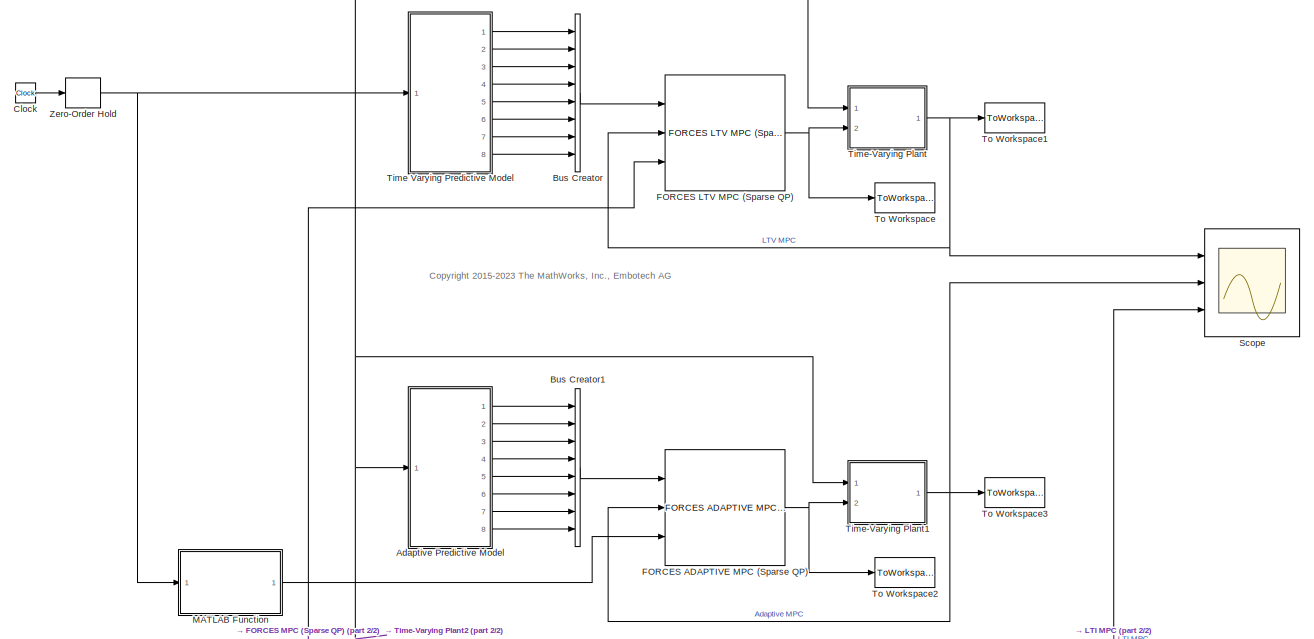
[diagram: root canvas - part 1/2, full width, middle band]
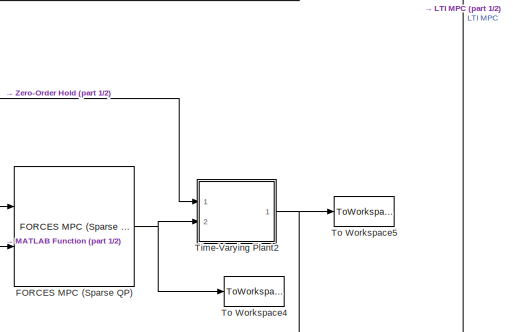
[diagram: root canvas - part 2/2, bottom right region]
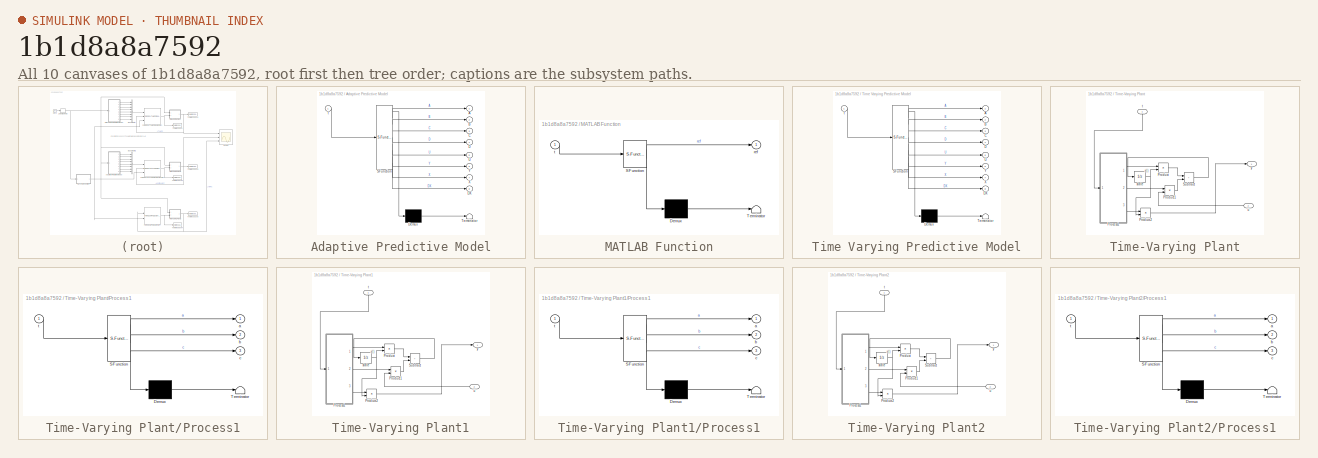
[diagram: thumbnail index - all 10 canvases of the model, root first then tree order]
MODEL slx_1b1d8a8a7592
KIND model
CONFIG AbsTol = auto
CONFIG EnableMultiTasking = on
CONFIG FixedStep = Ts
CONFIG MaxStep = auto
CONFIG MinStep = auto
CONFIG RelTol = 1e-3
CONFIG SampleTimeConstraint = Unconstrained
CONFIG Solver = FixedStepDiscrete
CONFIG SolverName = FixedStepDiscrete
CONFIG StartTime = 0.0
CONFIG StopTime = Tstop
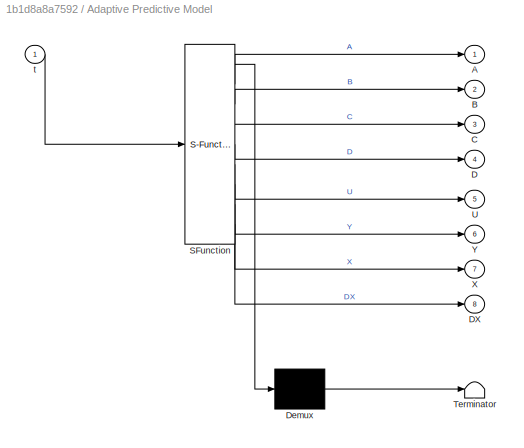
BLOCK [SubSystem] Adaptive Predictive Model
  ErrorFcn = Stateflow.Translate.translate
  PermitHierarchicalResolution = ExplicitOnly
  Ports = [1, 8]
  RequestExecContextInheritance = off
  SFBlockType = MATLAB Function
  TreatAsAtomicUnit = on
BLOCK [Demux] Adaptive Predictive Model/ Demux 
  Outputs = 1
  Ports = [1, 1]
BLOCK [S-Function] Adaptive Predictive Model/ SFunction 
  EnableBusSupport = on
  FunctionName = sf_sfun
  Parameters = Ts
  PortCounts = [1 9]
  Ports = [1, 9]
  SFcnIsStateOwnerBlock = off
  SFunctionDeploymentMode = off
  Tag = Stateflow S-Function mpc_forces 3
BLOCK [Terminator] Adaptive Predictive Model/ Terminator 
BLOCK [Outport] Adaptive Predictive Model/A
BLOCK [Outport] Adaptive Predictive Model/B
  Port = 2
BLOCK [Outport] Adaptive Predictive Model/C
  Port = 3
BLOCK [Outport] Adaptive Predictive Model/D
  Port = 4
BLOCK [Outport] Adaptive Predictive Model/DX
  Port = 8
BLOCK [Outport] Adaptive Predictive Model/U
  Port = 5
BLOCK [Outport] Adaptive Predictive Model/X
  Port = 7
BLOCK [Outport] Adaptive Predictive Model/Y
  Port = 6
BLOCK [Inport] Adaptive Predictive Model/t
BLOCK [BusCreator] Bus Creator
  DisplayOption = bar
  InheritFromInputs = on
  Inputs = 8
  Ports = [8, 1]
BLOCK [BusCreator] Bus Creator1
  DisplayOption = bar
  InheritFromInputs = on
  Inputs = 8
  Ports = [8, 1]
BLOCK [Clock] Clock
BLOCK [Reference] FORCES ADAPTIVE MPC (Sparse QP)  REF=forceslib/FORCES ADAPTIVE MPC (Sparse QP)  (lib defined in slx_01065b56049c, slx_1ff7529277ff, +15 more)
  Ports = [3, 1]
  SourceBlock = forceslib/FORCES ADAPTIVE MPC (Sparse QP)
  SourceProductName = FORCESPRO MPC Blocks
  SourceType = ForcesAdaptiveMPC_SparseQP
BLOCK [Reference] FORCES LTV MPC (Sparse QP)  REF=forceslib/FORCES LTV MPC (Sparse QP)  (lib defined in slx_01065b56049c, slx_1ff7529277ff, +15 more)
  Ports = [3, 1]
  SourceBlock = forceslib/FORCES LTV MPC (Sparse QP)
  SourceProductName = FORCESPRO MPC Blocks
  SourceType = ForcesLTVMPC_SparseQP
BLOCK [Reference] FORCES MPC (Sparse QP)  REF=forceslib/FORCES MPC (Sparse QP)  (lib defined in slx_01065b56049c, slx_1ff7529277ff, +15 more)
  Ports = [2, 1]
  SourceBlock = forceslib/FORCES MPC (Sparse QP)
  SourceProductName = FORCESPRO MPC Blocks
  SourceType = ForcesMPC_SparseQP
BLOCK [SubSystem] MATLAB Function
  ErrorFcn = Stateflow.Translate.translate
  PermitHierarchicalResolution = ExplicitOnly
  Ports = [1, 1]
  RequestExecContextInheritance = off
  SFBlockType = MATLAB Function
  TreatAsAtomicUnit = on
BLOCK [Demux] MATLAB Function/ Demux 
  Outputs = 1
  Ports = [1, 1]
BLOCK [S-Function] MATLAB Function/ SFunction 
  EnableBusSupport = on
  FunctionName = sf_sfun
  Parameters = Ts,Tstop
  PortCounts = [1 2]
  Ports = [1, 2]
  SFcnIsStateOwnerBlock = off
  SFunctionDeploymentMode = off
  Tag = Stateflow S-Function mpc_forces 5
BLOCK [Terminator] MATLAB Function/ Terminator 
BLOCK [Outport] MATLAB Function/ref
BLOCK [Inport] MATLAB Function/t
BLOCK [Scope] Scope
  Floating = off
  NumInputPorts = 3
  Ports = [3]
  ScopeSpecificationString = Simulink.scopes.TimeScopeBlockCfg('CurrentConfiguration', extmgr.ConfigurationSet(extmgr.Configuration('Core','General UI',true),extmgr.Configuration('Core','Source UI',true),extmgr.Configuration('Sources','WiredSimulink',true),extmgr.Configuration('Visuals','Time Domain',true,'SerializedDisplays',{struct('MinYLimReal','-0.16758','MaxYLimReal','1.50821','YLabelReal','','MinYLimMag','0.00000','MaxY...<+1603ch>
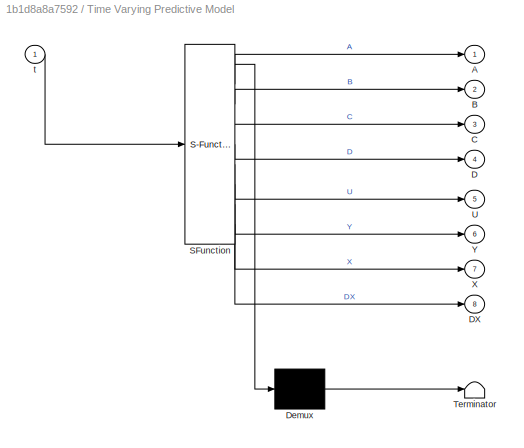
BLOCK [SubSystem] Time Varying Predictive Model
  ErrorFcn = Stateflow.Translate.translate
  PermitHierarchicalResolution = ExplicitOnly
  Ports = [1, 8]
  RequestExecContextInheritance = off
  SFBlockType = MATLAB Function
  TreatAsAtomicUnit = on
BLOCK [Demux] Time Varying Predictive Model/ Demux 
  Outputs = 1
  Ports = [1, 1]
BLOCK [S-Function] Time Varying Predictive Model/ SFunction 
  EnableBusSupport = on
  FunctionName = sf_sfun
  Parameters = Ts,p
  PortCounts = [1 9]
  Ports = [1, 9]
  SFcnIsStateOwnerBlock = off
  SFunctionDeploymentMode = off
  Tag = Stateflow S-Function mpc_forces 1
BLOCK [Terminator] Time Varying Predictive Model/ Terminator 
BLOCK [Outport] Time Varying Predictive Model/A
BLOCK [Outport] Time Varying Predictive Model/B
  Port = 2
BLOCK [Outport] Time Varying Predictive Model/C
  Port = 3
BLOCK [Outport] Time Varying Predictive Model/D
  Port = 4
BLOCK [Outport] Time Varying Predictive Model/DX
  Port = 8
BLOCK [Outport] Time Varying Predictive Model/U
  Port = 5
BLOCK [Outport] Time Varying Predictive Model/X
  Port = 7
BLOCK [Outport] Time Varying Predictive Model/Y
  Port = 6
BLOCK [Inport] Time Varying Predictive Model/t
BLOCK [SubSystem] Time-Varying Plant
  Ports = [2, 1]
  RequestExecContextInheritance = off
BLOCK [SubSystem] Time-Varying Plant/Process1
  ErrorFcn = Stateflow.Translate.translate
  PermitHierarchicalResolution = ExplicitOnly
  Ports = [1, 3]
  RequestExecContextInheritance = off
  SFBlockType = MATLAB Function
  SystemSampleTime = Ts
  TreatAsAtomicUnit = on
BLOCK [Demux] Time-Varying Plant/Process1/ Demux 
  Outputs = 1
  Ports = [1, 1]
BLOCK [S-Function] Time-Varying Plant/Process1/ SFunction 
  EnableBusSupport = on
  FunctionName = sf_sfun
  Parameters = Ts
  PortCounts = [1 4]
  Ports = [1, 4]
  SFcnIsStateOwnerBlock = off
  SFunctionDeploymentMode = off
  Tag = Stateflow S-Function mpc_forces 2
BLOCK [Terminator] Time-Varying Plant/Process1/ Terminator 
BLOCK [Outport] Time-Varying Plant/Process1/a
BLOCK [Outport] Time-Varying Plant/Process1/b
  Port = 2
BLOCK [Outport] Time-Varying Plant/Process1/c
  Port = 3
BLOCK [Inport] Time-Varying Plant/Process1/t
BLOCK [Product] Time-Varying Plant/Product
  Multiplication = Matrix(*)
  Ports = [2, 1]
BLOCK [Product] Time-Varying Plant/Product1
  Multiplication = Matrix(*)
  Ports = [2, 1]
BLOCK [Product] Time-Varying Plant/Product2
  Multiplication = Matrix(*)
  Ports = [2, 1]
BLOCK [Sum] Time-Varying Plant/Subtract
  IconShape = rectangular
  Ports = [2, 1]
BLOCK [UnitDelay] Time-Varying Plant/state
  HasFrameUpgradeWarning = on
  InitialCondition = x0
  SampleTime = Ts
BLOCK [Inport] Time-Varying Plant/t
BLOCK [Inport] Time-Varying Plant/u
  Port = 2
BLOCK [Outport] Time-Varying Plant/y
BLOCK [SubSystem] Time-Varying Plant1
  Ports = [2, 1]
  RequestExecContextInheritance = off
BLOCK [SubSystem] Time-Varying Plant1/Process1
  ErrorFcn = Stateflow.Translate.translate
  PermitHierarchicalResolution = ExplicitOnly
  Ports = [1, 3]
  RequestExecContextInheritance = off
  SFBlockType = MATLAB Function
  SystemSampleTime = Ts
  TreatAsAtomicUnit = on
BLOCK [Demux] Time-Varying Plant1/Process1/ Demux 
  Outputs = 1
  Ports = [1, 1]
BLOCK [S-Function] Time-Varying Plant1/Process1/ SFunction 
  EnableBusSupport = on
  FunctionName = sf_sfun
  Parameters = Ts
  PortCounts = [1 4]
  Ports = [1, 4]
  SFcnIsStateOwnerBlock = off
  SFunctionDeploymentMode = off
  Tag = Stateflow S-Function mpc_forces 4
BLOCK [Terminator] Time-Varying Plant1/Process1/ Terminator 
BLOCK [Outport] Time-Varying Plant1/Process1/a
BLOCK [Outport] Time-Varying Plant1/Process1/b
  Port = 2
BLOCK [Outport] Time-Varying Plant1/Process1/c
  Port = 3
BLOCK [Inport] Time-Varying Plant1/Process1/t
BLOCK [Product] Time-Varying Plant1/Product
  Multiplication = Matrix(*)
  Ports = [2, 1]
BLOCK [Product] Time-Varying Plant1/Product1
  Multiplication = Matrix(*)
  Ports = [2, 1]
BLOCK [Product] Time-Varying Plant1/Product2
  Multiplication = Matrix(*)
  Ports = [2, 1]
BLOCK [Sum] Time-Varying Plant1/Subtract
  IconShape = rectangular
  Ports = [2, 1]
BLOCK [UnitDelay] Time-Varying Plant1/state
  HasFrameUpgradeWarning = on
  InitialCondition = x0
  SampleTime = Ts
BLOCK [Inport] Time-Varying Plant1/t
BLOCK [Inport] Time-Varying Plant1/u
  Port = 2
BLOCK [Outport] Time-Varying Plant1/y
BLOCK [SubSystem] Time-Varying Plant2
  Ports = [2, 1]
  RequestExecContextInheritance = off
BLOCK [SubSystem] Time-Varying Plant2/Process1
  ErrorFcn = Stateflow.Translate.translate
  PermitHierarchicalResolution = ExplicitOnly
  Ports = [1, 3]
  RequestExecContextInheritance = off
  SFBlockType = MATLAB Function
  SystemSampleTime = Ts
  TreatAsAtomicUnit = on
BLOCK [Demux] Time-Varying Plant2/Process1/ Demux 
  Outputs = 1
  Ports = [1, 1]
BLOCK [S-Function] Time-Varying Plant2/Process1/ SFunction 
  EnableBusSupport = on
  FunctionName = sf_sfun
  Parameters = Ts
  PortCounts = [1 4]
  Ports = [1, 4]
  SFcnIsStateOwnerBlock = off
  SFunctionDeploymentMode = off
  Tag = Stateflow S-Function mpc_forces 6
BLOCK [Terminator] Time-Varying Plant2/Process1/ Terminator 
BLOCK [Outport] Time-Varying Plant2/Process1/a
BLOCK [Outport] Time-Varying Plant2/Process1/b
  Port = 2
BLOCK [Outport] Time-Varying Plant2/Process1/c
  Port = 3
BLOCK [Inport] Time-Varying Plant2/Process1/t
BLOCK [Product] Time-Varying Plant2/Product
  Multiplication = Matrix(*)
  Ports = [2, 1]
BLOCK [Product] Time-Varying Plant2/Product1
  Multiplication = Matrix(*)
  Ports = [2, 1]
BLOCK [Product] Time-Varying Plant2/Product2
  Multiplication = Matrix(*)
  Ports = [2, 1]
BLOCK [Sum] Time-Varying Plant2/Subtract
  IconShape = rectangular
  Ports = [2, 1]
BLOCK [UnitDelay] Time-Varying Plant2/state
  HasFrameUpgradeWarning = on
  InitialCondition = x0
  SampleTime = Ts
BLOCK [Inport] Time-Varying Plant2/t
BLOCK [Inport] Time-Varying Plant2/u
  Port = 2
BLOCK [Outport] Time-Varying Plant2/y
BLOCK [ToWorkspace] To Workspace
  FixptAsFi = on
  MaxDataPoints = inf
  Ports = [1]
  SampleTime = -1
  VariableName = usimLTVFORCES
BLOCK [ToWorkspace] To Workspace1
  FixptAsFi = on
  MaxDataPoints = inf
  Ports = [1]
  SampleTime = -1
  VariableName = ysimLTVFORCES
BLOCK [ToWorkspace] To Workspace2
  FixptAsFi = on
  MaxDataPoints = inf
  Ports = [1]
  SampleTime = -1
  VariableName = usimAdaptiveFORCES
BLOCK [ToWorkspace] To Workspace3
  FixptAsFi = on
  MaxDataPoints = inf
  Ports = [1]
  SampleTime = -1
  VariableName = ysimAdaptiveFORCES
BLOCK [ToWorkspace] To Workspace4
  FixptAsFi = on
  MaxDataPoints = inf
  Ports = [1]
  SampleTime = -1
  VariableName = usimLTIFORCES
BLOCK [ToWorkspace] To Workspace5
  FixptAsFi = on
  MaxDataPoints = inf
  Ports = [1]
  SampleTime = -1
  VariableName = ysimLTIFORCES
BLOCK [ZeroOrderHold] Zero-Order Hold
  SampleTime = Ts
ANNOTATION (root): <copyright redacted>
ANNOTATION Time-Varying Plant: x(t)
ANNOTATION Time-Varying Plant1: x(t)
ANNOTATION Time-Varying Plant2: x(t)
LINE Adaptive Predictive Model:1 -> Bus Creator1:1
LINE Adaptive Predictive Model:2 -> Bus Creator1:2
LINE Adaptive Predictive Model:3 -> Bus Creator1:3
LINE Adaptive Predictive Model:4 -> Bus Creator1:4
LINE Adaptive Predictive Model:5 -> Bus Creator1:5
LINE Adaptive Predictive Model:6 -> Bus Creator1:6
LINE Adaptive Predictive Model:7 -> Bus Creator1:7
LINE Adaptive Predictive Model:8 -> Bus Creator1:8
LINE Bus Creator1:1 -> FORCES ADAPTIVE MPC (Sparse QP):1
LINE Bus Creator:1 -> FORCES LTV MPC (Sparse QP):1
LINE Clock:1 -> Zero-Order Hold:1
NET FORCES ADAPTIVE MPC (Sparse QP):1 -> Time-Varying Plant1:2, To Workspace2:1
NET FORCES LTV MPC (Sparse QP):1 -> Time-Varying Plant:2, To Workspace:1
NET FORCES MPC (Sparse QP):1 -> Time-Varying Plant2:2, To Workspace4:1
NET MATLAB Function:1 -> FORCES ADAPTIVE MPC (Sparse QP):3, FORCES LTV MPC (Sparse QP):3, FORCES MPC (Sparse QP):2
LINE Time Varying Predictive Model:1 -> Bus Creator:1
LINE Time Varying Predictive Model:2 -> Bus Creator:2
LINE Time Varying Predictive Model:3 -> Bus Creator:3
LINE Time Varying Predictive Model:4 -> Bus Creator:4
LINE Time Varying Predictive Model:5 -> Bus Creator:5
LINE Time Varying Predictive Model:6 -> Bus Creator:6
LINE Time Varying Predictive Model:7 -> Bus Creator:7
LINE Time Varying Predictive Model:8 -> Bus Creator:8
LINE Time-Varying Plant/Process1:1 -> Time-Varying Plant/Product:1
LINE Time-Varying Plant/Process1:2 -> Time-Varying Plant/Product1:1
LINE Time-Varying Plant/Process1:3 -> Time-Varying Plant/Product2:1
LINE Time-Varying Plant/Product1:1 -> Time-Varying Plant/Subtract:2
LINE Time-Varying Plant/Product2:1 -> Time-Varying Plant/y:1
LINE Time-Varying Plant/Product:1 -> Time-Varying Plant/Subtract:1
LINE Time-Varying Plant/Subtract:1 -> Time-Varying Plant/state:1
NET Time-Varying Plant/state:1 -> Time-Varying Plant/Product2:2, Time-Varying Plant/Product:2
LINE Time-Varying Plant/t:1 -> Time-Varying Plant/Process1:1
LINE Time-Varying Plant/u:1 -> Time-Varying Plant/Product1:2
LINE Time-Varying Plant1/Process1:1 -> Time-Varying Plant1/Product:1
LINE Time-Varying Plant1/Process1:2 -> Time-Varying Plant1/Product1:1
LINE Time-Varying Plant1/Process1:3 -> Time-Varying Plant1/Product2:1
LINE Time-Varying Plant1/Product1:1 -> Time-Varying Plant1/Subtract:2
LINE Time-Varying Plant1/Product2:1 -> Time-Varying Plant1/y:1
LINE Time-Varying Plant1/Product:1 -> Time-Varying Plant1/Subtract:1
LINE Time-Varying Plant1/Subtract:1 -> Time-Varying Plant1/state:1
NET Time-Varying Plant1/state:1 -> Time-Varying Plant1/Product2:2, Time-Varying Plant1/Product:2
LINE Time-Varying Plant1/t:1 -> Time-Varying Plant1/Process1:1
LINE Time-Varying Plant1/u:1 -> Time-Varying Plant1/Product1:2
NET Time-Varying Plant1:1 -> FORCES ADAPTIVE MPC (Sparse QP):2, Scope:2, To Workspace3:1
LINE Time-Varying Plant2/Process1:1 -> Time-Varying Plant2/Product:1
LINE Time-Varying Plant2/Process1:2 -> Time-Varying Plant2/Product1:1
LINE Time-Varying Plant2/Process1:3 -> Time-Varying Plant2/Product2:1
LINE Time-Varying Plant2/Product1:1 -> Time-Varying Plant2/Subtract:2
LINE Time-Varying Plant2/Product2:1 -> Time-Varying Plant2/y:1
LINE Time-Varying Plant2/Product:1 -> Time-Varying Plant2/Subtract:1
LINE Time-Varying Plant2/Subtract:1 -> Time-Varying Plant2/state:1
NET Time-Varying Plant2/state:1 -> Time-Varying Plant2/Product2:2, Time-Varying Plant2/Product:2
LINE Time-Varying Plant2/t:1 -> Time-Varying Plant2/Process1:1
LINE Time-Varying Plant2/u:1 -> Time-Varying Plant2/Product1:2
NET Time-Varying Plant2:1 -> FORCES MPC (Sparse QP):1, Scope:3, To Workspace5:1
NET Time-Varying Plant:1 -> FORCES LTV MPC (Sparse QP):2, Scope:1, To Workspace1:1
NET Zero-Order Hold:1 -> Adaptive Predictive Model:1, MATLAB Function:1, Time Varying Predictive Model:1, Time-Varying Plant1:1, Time-Varying Plant2:1, Time-Varying Plant:1
note: NET lines group one-source signal fan-out (src -> all destinations, sorted); 1:1 wires keep LINE
CHART Time Varying Predictive Model states=1 transitions=1
  STATE_LABEL 'eML_blk_kernel()'
  STATE_LABEL "SCRIPT:\nfunction [A,B,C,D,U,Y,X,DX] = fcn(t,Ts,p)\n%#codegen\n\ncoder.extrinsic('ss');\ncoder.extrinsic('c2d');\ncoder.extrinsic('tf');\ncoder.extrinsic('ssdata');\n\nnx=3; % number of states\n\nA=zeros(nx,nx,p+1);\nB=zeros(nx,1,p+1);\nC=zeros(1,nx,p+1);\nD=zeros(1,1,p+1);\nU=zeros(1,1,p+1);\nY=zeros(1,1,p+1);\nX=zeros(nx,1,p+1);\nDX=zeros(nx,1,p+1);\n\nfor k=0:p\n    [a,b,c,d]=ssdata(ss(c2d(tf([5 5+2*cos((t/Ts+k)/4)...<+215ch>"
CHART Time-Varying Plant/Process1 states=1 transitions=1
  STATE_LABEL 'eML_blk_kernel()'
  STATE_LABEL "SCRIPT:\nfunction [a,b,c] = fcn(t,Ts)\n%#codegen\n\ncoder.extrinsic('ss');\ncoder.extrinsic('c2d');\ncoder.extrinsic('tf');\ncoder.extrinsic('ssdata');\n\nnx=3;\na=zeros(nx,nx);\nb=zeros(nx,1);\nc=zeros(1,nx);\n\n[a,b,c]=ssdata(ss(c2d(tf([5 5+2*cos(t/Ts/4)],[1 3 2 6+1*sin(t/Ts/2)]),Ts)));\n\n"  <repeated x3 — deduplicated; at blocks: Process1>
CHART Adaptive Predictive Model states=1 transitions=1
  STATE_LABEL 'eML_blk_kernel()'
  STATE_LABEL "SCRIPT:\nfunction [A,B,C,D,U,Y,X,DX] = fcn(t,Ts)\n%#codegen\n\ncoder.extrinsic('ss');\ncoder.extrinsic('c2d');\ncoder.extrinsic('tf');\ncoder.extrinsic('ssdata');\n\nnx = 3; % number of states\nA = zeros(nx, nx);\nB = zeros(nx, 1);\nC = zeros(1, nx);\nD = zeros(1, 1);\nU = zeros(1, 1);\nY = zeros(1, 1);\nX = zeros(nx, 1);\nDX = zeros(nx, 1);\n\nk = 0;\n[A(:), B(:), C(:), D(:)] = ssdata(ss(c2d(tf([5 5+2*cos((t/Ts+k)/4...<+105ch>"
CHART Time-Varying Plant1/Process1 states=1 transitions=1
  STATE_LABEL 'eML_blk_kernel()'
CHART MATLAB Function states=1 transitions=1
  STATE_LABEL 'eML_blk_kernel()'
  STATE_LABEL 'SCRIPT:\nfunction ref = generateReference(t, Ts, Tstop)\n    p=3;\n    Nsim = round(Tstop/Ts) + 1;\n\n    stepSwitch = round(Nsim/3);\n    references = ones(Nsim+p, 1);\n    references(stepSwitch:2*stepSwitch-1) = 0.6;\n    references(2*stepSwitch:end) = 0.25;\n    \n    ct = round(t/Ts) + 1;\n    ref = zeros(p,1);\n    ref(:) = references(ct:ct+p-1);\nend\n'
CHART Time-Varying Plant2/Process1 states=1 transitions=1
  STATE_LABEL 'eML_blk_kernel()'
